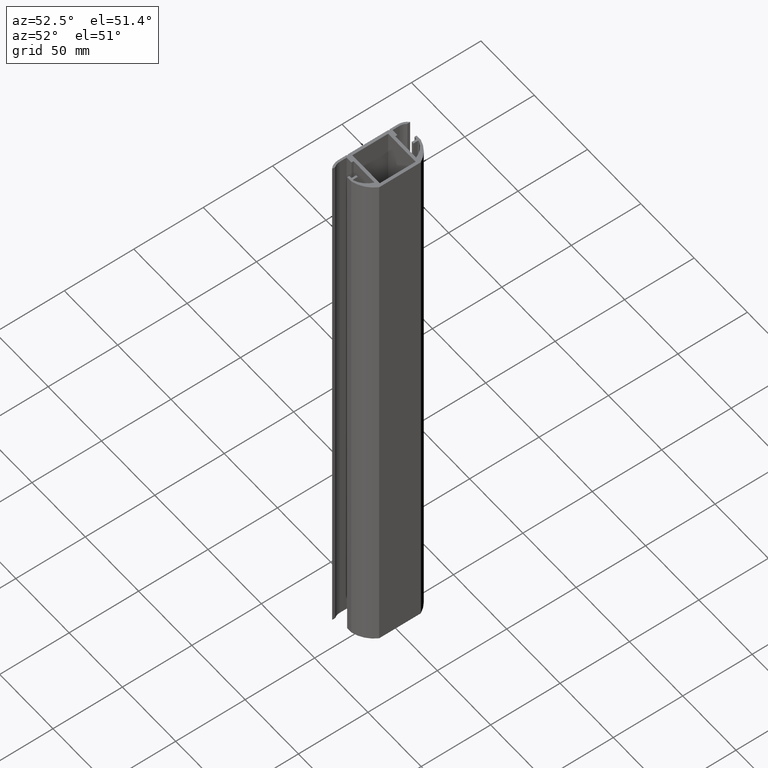
[diagram: clean part render]
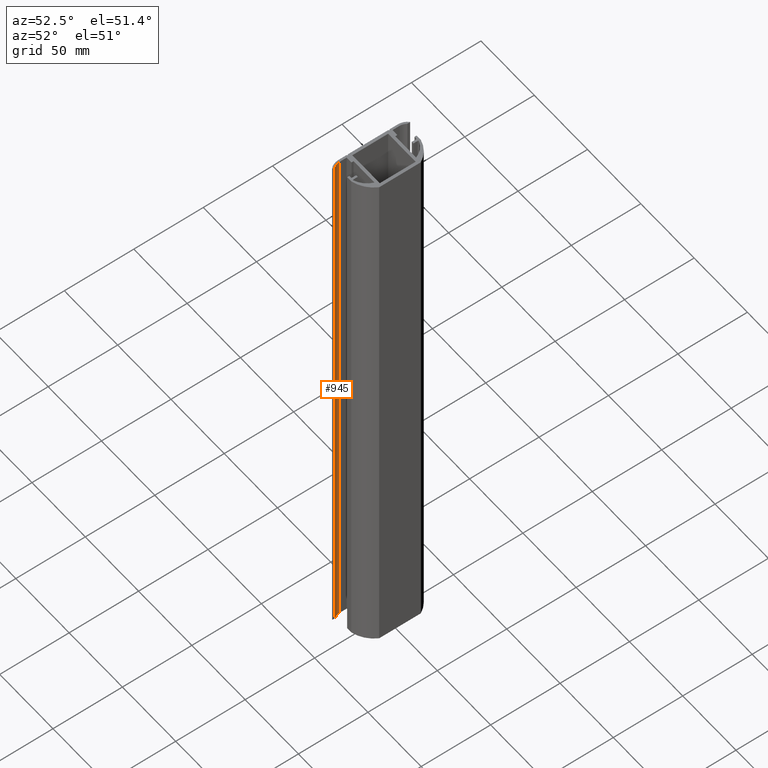
[diagram: same view with one face highlighted and labeled with its STEP entity id]
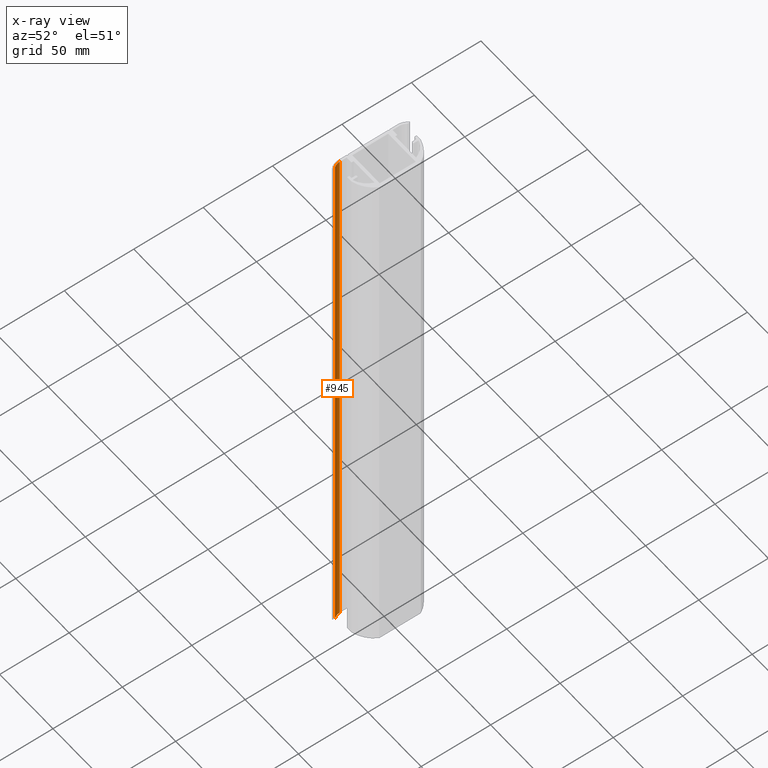
[diagram: x-ray of the same camera — body ghosted, the highlighted face saturated]
A machine part, auxiliary view. The second image highlights one B-rep face of the part: STEP entity #945.
The next image is the same camera in x-ray: the body ghosted, the highlighted face saturated — about 0% of this face is hidden behind the body in this view.
In plain terms, the highlighted cylindrical surface (edge-blend (fillet) strip) has radius 7.5 mm, axis along (0, 0, 1).
Its self-contained STEP definition (entity closure, byte-faithful):
#75=FACE_OUTER_BOUND('',#123,.T.);
#123=EDGE_LOOP('',(#719,#720,#721,#722));
#206=LINE('',#1446,#324);
#207=LINE('',#1452,#325);
#324=VECTOR('',#1175,10.);
#325=VECTOR('',#1182,10.);
#397=CIRCLE('',#1025,7.49999999925);
#398=CIRCLE('',#1026,7.49999999925);
#450=VERTEX_POINT('',#1440);
#452=VERTEX_POINT('',#1444);
#453=VERTEX_POINT('',#1448);
#454=VERTEX_POINT('',#1450);
#562=EDGE_CURVE('',#452,#450,#206,.T.);
#563=EDGE_CURVE('',#450,#453,#397,.T.);
#564=EDGE_CURVE('',#454,#452,#398,.T.);
#565=EDGE_CURVE('',#454,#453,#207,.T.);
#719=ORIENTED_EDGE('',*,*,#563,.F.);
#720=ORIENTED_EDGE('',*,*,#562,.F.);
#721=ORIENTED_EDGE('',*,*,#564,.F.);
#722=ORIENTED_EDGE('',*,*,#565,.T.);
#919=CYLINDRICAL_SURFACE('',#1024,7.49999999925);
#945=ADVANCED_FACE('',(#75),#919,.F.);
#1024=AXIS2_PLACEMENT_3D('',#1447,#1176,#1177);
#1025=AXIS2_PLACEMENT_3D('',#1449,#1178,#1179);
#1026=AXIS2_PLACEMENT_3D('',#1451,#1180,#1181);
#1175=DIRECTION('',(0.,0.,1.));
#1176=DIRECTION('center_axis',(0.,0.,1.));
#1177=DIRECTION('ref_axis',(1.,0.,0.));
#1178=DIRECTION('center_axis',(0.,0.,-1.));
#1179=DIRECTION('ref_axis',(1.,0.,0.));
#1180=DIRECTION('center_axis',(0.,0.,1.));
#1181=DIRECTION('ref_axis',(1.,0.,0.));
#1182=DIRECTION('',(0.,0.,1.));
#1440=CARTESIAN_POINT('',(-11.9999999973081,-26.0000000001864,413.));
#1444=CARTESIAN_POINT('',(-11.9999999973081,-26.0000000001864,0.));
#1446=CARTESIAN_POINT('',(-11.9999999973081,-26.0000000001864,0.));
#1447=CARTESIAN_POINT('Origin',(-5.99999999790056,-21.5000000006465,0.));
#1448=CARTESIAN_POINT('',(-13.4999999971506,-21.5000000006465,413.));
#1449=CARTESIAN_POINT('Origin',(-5.99999999790056,-21.5000000006465,413.));
#1450=CARTESIAN_POINT('',(-13.4999999971506,-21.5000000006465,0.));
#1451=CARTESIAN_POINT('Origin',(-5.99999999790056,-21.5000000006465,0.));
#1452=CARTESIAN_POINT('',(-13.4999999971506,-21.5000000006465,0.));